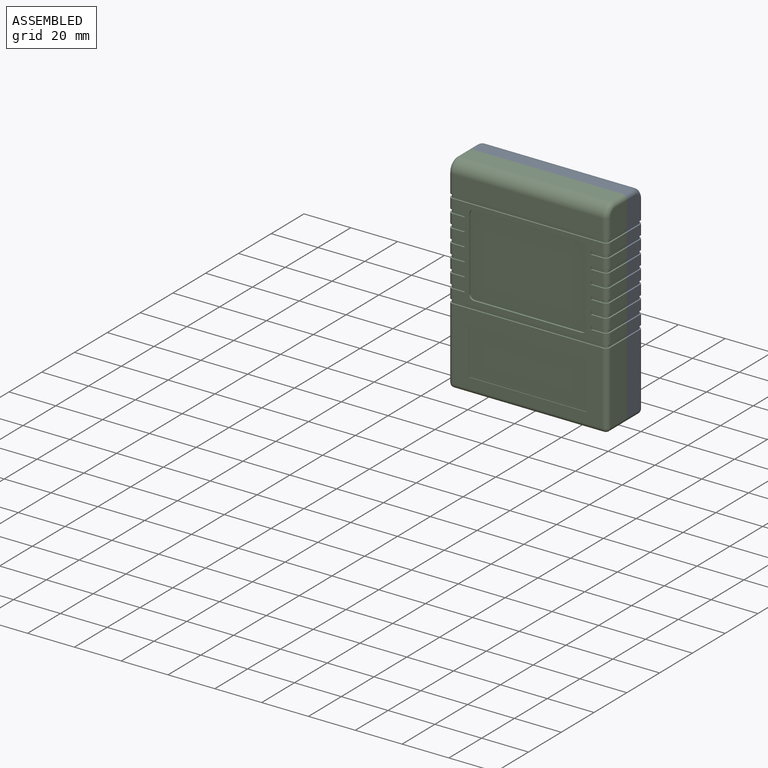
[diagram: assembled view]
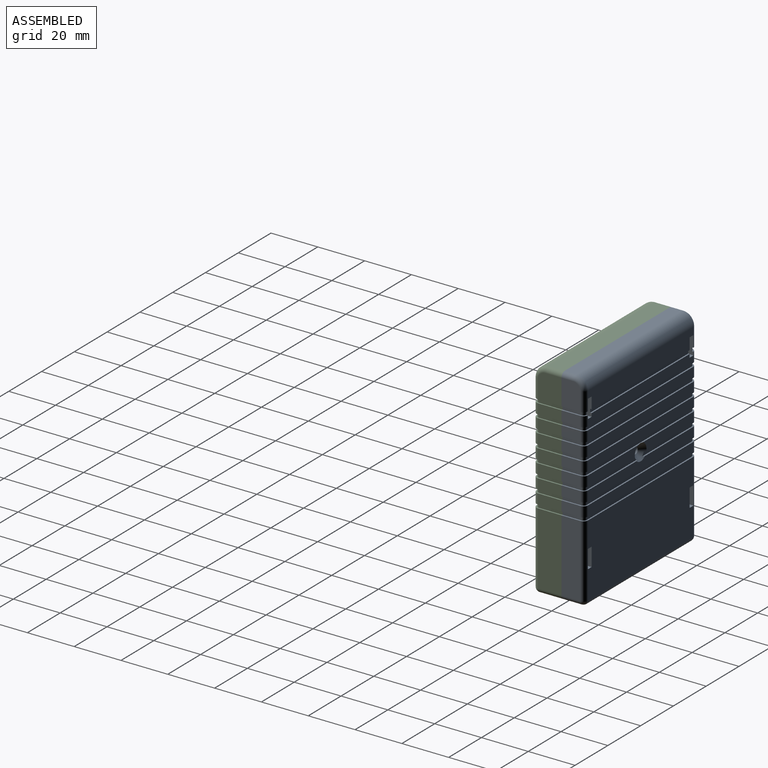
[diagram: assembled view, second angle]
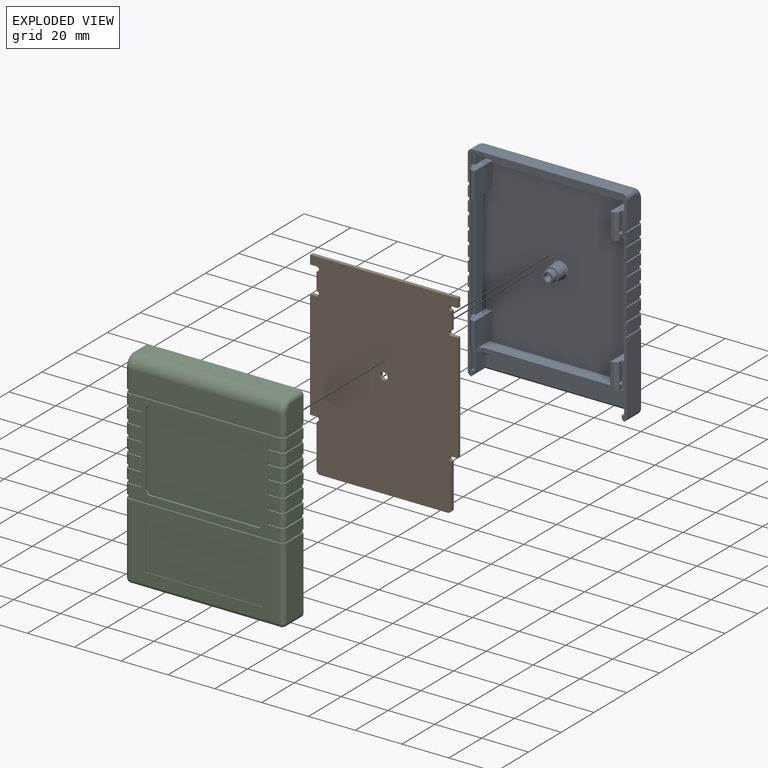
[diagram: exploded view]
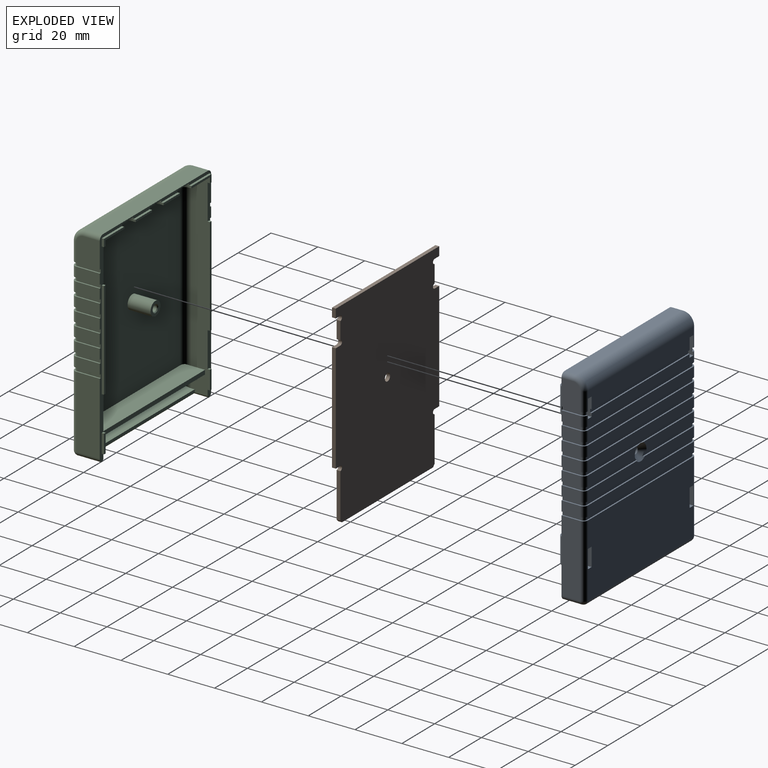
[diagram: exploded view, second angle]
FCSTD DOCUMENT  (FreeCAD 1.0R39319 (Git))
Label: C64MegaCartNormalCase
License: All rights reserved
LicenseURL: https://en.wikipedia.org/wiki/All_rights_reserved
objects: Sketcher::SketchObject×29, PartDesign::Pocket×15, PartDesign::Pad×10, PartDesign::Fillet×4, PartDesign::Mirrored×3, PartDesign::LinearPattern×3, PartDesign::Body×3, App::Link×3, PartDesign::SubtractivePipe×2, PartDesign::Plane×2, PartDesign::Draft×2, PartDesign::Groove×2, PartDesign::Chamfer×1, App::FeaturePython×1, Assembly::JointGroup×1, Assembly::AssemblyObject×1, PartDesign::AdditiveCone×1, PartDesign::SubtractiveCylinder×1, App::DocumentObjectGroup×1
note: 189 computed .brp shape members not serialized (recipe doc carries the construction recipe); baked Part::Feature solids carry a one-line shape summary decoded from their .brp

FEATURE [Sketcher::SketchObject] Sketch
  ArcFitTolerance = 1e-06
  AttachmentSupport = -> [YZ_Plane]
  FullyConstrained = true
  MakeInternals = false
  MapMode = 5
  Placement = pos=(0,0,0) rot=(0.57735,0.57735,0.57735;2.0944rad)
  sketch-geometry (4):
    g0: LineSegment StartX=0 StartY=0 StartZ=0 EndX=0 EndY=-88 EndZ=0
    g1: LineSegment StartX=0 StartY=-88 StartZ=0 EndX=10 EndY=-88 EndZ=0
    g2: LineSegment StartX=10 StartY=-88 StartZ=0 EndX=10 EndY=0 EndZ=0
    g3: LineSegment StartX=10 StartY=0 StartZ=0 EndX=0 EndY=0 EndZ=0
  constraints (11):
    c: Coincident(g-1,g0)
    c: PointOnObject(g0,g-2)
    c: Coincident(g0,g1)
    c: Horizontal(g1)
    c: Coincident(g1,g2)
    c: PointOnObject(g2,g-1)
    c: Vertical(g2)
    c: Coincident(g2,g3)
    c: Coincident(g3,g0)
    c: DistanceX(g3,g3) = 10
    c: DistanceY(g2,g2) = 88
FEATURE [PartDesign::Pad] Pad
  Direction = (1,0,0)
  Length = 68
  Length2 = 10
  Midplane = true
  Placement = pos=(0,0,0) rot=(1,1,1;2.0944rad)
  Profile = -> Sketch
  ReferenceAxis = -> Sketch [N_Axis]
  Refine = true
  Suppressed = false
  Type = 0
FEATURE [PartDesign::Fillet] Fillet
  Base = -> Pad [Edge8]
  BaseFeature = -> Pad
  Placement = pos=(0,0,0) rot=(1,1,1;2.0944rad)
  Radius = 5
  Refine = true
  SupportTransform = false
  Suppressed = false
  UseAllEdges = false
FEATURE [PartDesign::Fillet] Fillet001
  Base = -> Fillet [Edge4,Edge3,Edge12,Edge6,Edge1]
  BaseFeature = -> Fillet
  Placement = pos=(0,0,0) rot=(1,1,1;2.0944rad)
  Radius = 2
  Refine = true
  SupportTransform = false
  Suppressed = false
  UseAllEdges = false
FEATURE [Sketcher::SketchObject] Sketch001
  ArcFitTolerance = 1e-06
  AttachmentSupport = -> [YZ_Plane]
  FullyConstrained = false
  MakeInternals = false
  MapMode = 5
  Placement = pos=(0,0,0) rot=(0.57735,0.57735,0.57735;2.0944rad)
  sketch-geometry (5):
    g0: LineSegment StartX=0 StartY=-2.2 StartZ=0 EndX=5.01607 EndY=-2.2 EndZ=0
    g1: ArcOfCircle CenterX=5.01607 CenterY=-5 CenterZ=0 NormalX=0 NormalY=0 NormalZ=1 AngleXU=0 Radius=2.8 StartAngle=-1.8e-15 EndAngle=1.5708
    g2: LineSegment StartX=7.81607 StartY=-5 StartZ=0 EndX=7.81607 EndY=-90.2 EndZ=0
    g3: LineSegment StartX=7.81607 StartY=-90.2 StartZ=0 EndX=0 EndY=-90.2 EndZ=0
    g4: LineSegment StartX=0 StartY=-90.2 StartZ=0 EndX=0 EndY=-2.2 EndZ=0
  constraints (13):
    c: PointOnObject(g0,g-2)
    c: Horizontal(g0)
    c: Tangent(g0,g1) = 1.5708
    c: Angle(g1) = 1.5708
    c: Tangent(g1,g2) = 1.5708
    c: Coincident(g2,g3)
    c: PointOnObject(g3,g-2)
    c: Coincident(g3,g4)
    c: Coincident(g4,g0)
    c: Horizontal(g3)
    c: Radius(g1) = 2.8
    c: DistanceY(g0,g-1) = 2.2
    c: DistanceY(g4,g4) = 88
FEATURE [PartDesign::Pocket] Pocket
  BaseFeature = -> Fillet001
  Direction = (-1,0,0)
  Length = 63.6
  Length2 = 5
  Midplane = true
  Placement = pos=(0,0,0) rot=(1,1,1;2.0944rad)
  Profile = -> Sketch001
  ReferenceAxis = -> Sketch001 [N_Axis]
  Refine = true
  Suppressed = false
  Type = 0
FEATURE [Sketcher::SketchObject] Sketch002
  ArcFitTolerance = 1e-06
  AttachmentSupport = -> [XZ_Plane]
  ExternalGeometry = -> [Pocket]
  FullyConstrained = true
  MakeInternals = false
  MapMode = 5
  Placement = pos=(0,0,0) rot=(1,0,0;1.5708rad)
  sketch-geometry (3):
    g0: LineSegment StartX=31.8 StartY=-87 StartZ=0 EndX=32.8 EndY=-88 EndZ=0
    g1: LineSegment StartX=32.8 StartY=-88 StartZ=0 EndX=31.8 EndY=-88 EndZ=0
    g2: LineSegment StartX=31.8 StartY=-88 StartZ=0 EndX=31.8 EndY=-87 EndZ=0
  constraints (8):
    c: Coincident(g0,g1)
    c: Horizontal(g1)
    c: Coincident(g1,g2)
    c: Coincident(g2,g0)
    c: Vertical(g2)
    c: Angle(g2,g0) = 0.785398
    c: Coincident(g1,g-3)
    c: DistanceY(g2,g2) = 1
FEATURE [PartDesign::SubtractivePipe] SubtractivePipe
  AuxilleryCurvelinear = true
  AuxillerySpineTangent = false
  BaseFeature = -> Pocket
  Binormal = (0,0,0)
  Mode = 0
  Placement = pos=(0,0,0) rot=(1,1,1;2.0944rad)
  Profile = -> Sketch002
  Refine = true
  Spine = -> Pocket [Edge37,Edge38,Edge39]
  SpineTangent = false
  Suppressed = false
  Transformation = 0
  Transition = 1
FEATURE [Sketcher::SketchObject] Sketch003
  ArcFitTolerance = 1e-06
  AttachmentOffset = pos=(0,0,-78.4) rot=(0,0,1;0rad)
  AttachmentSupport = -> [XY_Plane]
  FullyConstrained = true
  MakeInternals = false
  MapMode = 5
  Placement = pos=(0,0,-78.4) rot=(0,0,1;0rad)
  sketch-geometry (8):
    g0: LineSegment StartX=-32 StartY=8 StartZ=0 EndX=32 EndY=8 EndZ=0
    g1: LineSegment StartX=32 StartY=8 StartZ=0 EndX=32 EndY=0 EndZ=0
    g2: LineSegment StartX=32 StartY=0 StartZ=0 EndX=29 EndY=0 EndZ=0
    g3: LineSegment StartX=29 StartY=0 StartZ=0 EndX=29 EndY=2.2 EndZ=0
    g4: LineSegment StartX=29 StartY=2.2 StartZ=0 EndX=-29 EndY=2.2 EndZ=0
    g5: LineSegment StartX=-29 StartY=2.2 StartZ=0 EndX=-29 EndY=0 EndZ=0
    g6: LineSegment StartX=-29 StartY=0 StartZ=0 EndX=-32 EndY=0 EndZ=0
    g7: LineSegment StartX=-32 StartY=0 StartZ=0 EndX=-32 EndY=8 EndZ=0
  constraints (23):
    c: Coincident(g0,g1)
    c: Vertical(g1)
    c: Coincident(g1,g2)
    c: Horizontal(g2)
    c: Coincident(g2,g3)
    c: Vertical(g3)
    c: Coincident(g3,g4)
    c: Coincident(g4,g5)
    c: Vertical(g5)
    c: Coincident(g5,g6)
    c: Coincident(g6,g7)
    c: Coincident(g7,g0)
    c: Horizontal(g6)
    c: Vertical(g7)
    c: Equal(g6,g2)
    c: Equal(g3,g5)
    c: Symmetric(g4,g3,g-2)
    c: Horizontal(g0)
    c: PointOnObject(g6,g-1)
    c: DistanceX(g4,g4) = 58
    c: DistanceX(g6,g6) = 3
    c: DistanceY(g1,g1) = 8
    c: DistanceY(g5,g5) = 2.2
FEATURE [PartDesign::Pad] Pad001
  BaseFeature = -> SubtractivePipe
  Direction = (0,0,1)
  Length = 1.8
  Length2 = 10
  Placement = pos=(0,0,0) rot=(1,1,1;2.0944rad)
  Profile = -> Sketch003
  ReferenceAxis = -> Sketch003 [N_Axis]
  Refine = true
  Suppressed = false
  Type = 0
FEATURE [Sketcher::SketchObject] Sketch004
  ArcFitTolerance = 1e-06
  AttachmentSupport = -> [XZ_Plane]
  FullyConstrained = true
  MakeInternals = false
  MapMode = 5
  Placement = pos=(0,0,0) rot=(1,0,0;1.5708rad)
  sketch-geometry (4):
    g0: LineSegment StartX=-32.8 StartY=-1.2 StartZ=0 EndX=-32.8 EndY=-85.531 EndZ=0
    g1: LineSegment StartX=-32.8 StartY=-85.531 StartZ=0 EndX=32.8 EndY=-85.531 EndZ=0
    g2: LineSegment StartX=32.8 StartY=-85.531 StartZ=0 EndX=32.8 EndY=-1.2 EndZ=0
    g3: LineSegment StartX=32.8 StartY=-1.2 StartZ=0 EndX=-32.8 EndY=-1.2 EndZ=0
  constraints (11):
    c: Coincident(g0,g1)
    c: Coincident(g1,g2)
    c: Coincident(g2,g3)
    c: Coincident(g3,g0)
    c: Vertical(g0)
    c: Vertical(g2)
    c: Horizontal(g1)
    c: Symmetric(g0,g2,g-2)
    c: DistanceX(g3,g3) = 65.6
    c: DistanceY(g2,g-1) = 1.2
    c: DistanceY(g0,g0) = 84.331
FEATURE [PartDesign::Pocket] Pocket001
  BaseFeature = -> Pad001
  Direction = (0,1,-2e-16)
  Length = 1.5
  Length2 = 5
  Placement = pos=(0,0,0) rot=(1,1,1;2.0944rad)
  Profile = -> Sketch004
  ReferenceAxis = -> Sketch004 [N_Axis]
  Refine = true
  Suppressed = false
  Type = 0
FEATURE [Sketcher::SketchObject] Sketch005
  ArcFitTolerance = 1e-06
  AttachmentSupport = -> [Pocket]
  FullyConstrained = true
  MakeInternals = false
  MapMode = 5
  Placement = pos=(1.7e-15,7.81607,-7e-16) rot=(0.57735,0.57735,-0.57735;2.0944rad)
  sketch-geometry (1):
    g0: Circle CenterX=41 CenterY=0 CenterZ=0 NormalX=0 NormalY=0 NormalZ=1 AngleXU=0 Radius=3.075
  constraints (3):
    c: PointOnObject(g0,g-1)
    c: DistanceX(g-1,g0) = 41
    c: Diameter(g0) = 6.15
FEATURE [PartDesign::Pad] Pad002
  BaseFeature = -> Pocket001
  Direction = (0,-1,0)
  Length = 5.2
  Length2 = 10
  Placement = pos=(0,0,0) rot=(1,1,1;2.0944rad)
  Profile = -> Sketch005
  ReferenceAxis = -> Sketch005 [N_Axis]
  Refine = true
  Suppressed = false
  Type = 0
FEATURE [Sketcher::SketchObject] Sketch006
  ArcFitTolerance = 1e-06
  AttachmentSupport = -> [XZ_Plane]
  ExternalGeometry = -> [Pad002]
  FullyConstrained = true
  MakeInternals = false
  MapMode = 5
  Placement = pos=(0,0,0) rot=(1,0,0;1.5708rad)
  sketch-geometry (1):
    g0: Circle CenterX=0 CenterY=-41 CenterZ=0 NormalX=0 NormalY=0 NormalZ=1 AngleXU=0 Radius=0.5
  constraints (2):
    c: Diameter(g0) = 1
    c: Coincident(g0,g-3)
FEATURE [PartDesign::Pocket] Pocket002
  BaseFeature = -> Pad002
  Direction = (0,1,-2e-16)
  Length = 5
  Length2 = 5
  Placement = pos=(0,0,0) rot=(1,1,1;2.0944rad)
  Profile = -> Sketch006
  ReferenceAxis = -> Sketch006 [N_Axis]
  Refine = true
  Suppressed = false
  Type = 1
FEATURE [PartDesign::Chamfer] Chamfer
  Angle = 45
  Base = -> Pocket002 [Edge65]
  BaseFeature = -> Pocket002
  ChamferType = 0
  FlipDirection = false
  Placement = pos=(0,0,0) rot=(1,1,1;2.0944rad)
  Refine = true
  Size = 0.5
  Size2 = 1
  SupportTransform = false
  Suppressed = false
  UseAllEdges = false
FEATURE [PartDesign::Plane] DatumPlane
  AttachmentOffset = pos=(0,0,-12) rot=(0,0,1;0rad)
  AttachmentSupport = -> [XY_Plane]
  Length = 79.6619
  MapMode = 5
  Placement = pos=(0,0,-12) rot=(0,0,1;0rad)
  ResizeMode = 0
  Width = 61.6619
FEATURE [Sketcher::SketchObject] Sketch007
  ArcFitTolerance = 1e-06
  AttachmentSupport = -> [DatumPlane]
  FullyConstrained = true
  MakeInternals = false
  MapMode = 5
  Placement = pos=(0,0,-12) rot=(0,0,1;0rad)
  sketch-geometry (7):
    g0: LineSegment StartX=29 StartY=8 StartZ=0 EndX=29 EndY=-3 EndZ=0
    g1: LineSegment StartX=29 StartY=-3 StartZ=0 EndX=30.5 EndY=-3 EndZ=0
    g2: LineSegment StartX=30.5 StartY=-3 StartZ=0 EndX=31.8 EndY=-1.7 EndZ=0
    g3: LineSegment StartX=31.8 StartY=-1.7 StartZ=0 EndX=31.8 EndY=0 EndZ=0
    g4: LineSegment StartX=31.8 StartY=0 StartZ=0 EndX=33 EndY=0 EndZ=0
    g5: LineSegment StartX=33 StartY=0 StartZ=0 EndX=33 EndY=8 EndZ=0
    g6: LineSegment StartX=33 StartY=8 StartZ=0 EndX=29 EndY=8 EndZ=0
  constraints (21):
    c: Vertical(g0)
    c: Coincident(g0,g1)
    c: Horizontal(g1)
    c: Coincident(g1,g2)
    c: Coincident(g2,g3)
    c: PointOnObject(g3,g-1)
    c: Vertical(g3)
    c: Coincident(g3,g4)
    c: PointOnObject(g4,g-1)
    c: Coincident(g4,g5)
    c: Vertical(g5)
    c: Coincident(g5,g6)
    c: Coincident(g6,g0)
    c: Horizontal(g6)
    c: DistanceX(g1,g1) = 1.5
    c: DistanceY(g-1,g0) = 8
    c: Angle(g2,g1) = 2.35619
    c: DistanceX(g-1,g0) = 29
    c: DistanceX(g0,g2) = 2.8
    c: DistanceY(g3,g3) = 1.7
    c: DistanceX(g4,g4) = 1.2
FEATURE [PartDesign::Pad] Pad003
  BaseFeature = -> Chamfer
  Direction = (0,0,1)
  Length = 11
  Length2 = 10
  Midplane = true
  Placement = pos=(0,0,0) rot=(1,1,1;2.0944rad)
  Profile = -> Sketch007
  ReferenceAxis = -> Sketch007 [N_Axis]
  Refine = true
  Suppressed = false
  Type = 0
FEATURE [Sketcher::SketchObject] Sketch008
  ArcFitTolerance = 1e-06
  AttachmentSupport = -> [DatumPlane]
  ExternalGeometry = -> [Sketch007]
  FullyConstrained = false
  MakeInternals = false
  MapMode = 5
  Placement = pos=(0,0,-12) rot=(0,0,1;0rad)
  sketch-geometry (5):
    g0: LineSegment StartX=29.881 StartY=11 StartZ=0 EndX=30.3 EndY=-1 EndZ=0
    g1: LineSegment StartX=30.3 StartY=-1 StartZ=0 EndX=31.0416 EndY=-1 EndZ=0
    g2: LineSegment StartX=31.0416 StartY=-1 StartZ=0 EndX=31.8 EndY=-1.4 EndZ=0
    g3: LineSegment StartX=31.8 StartY=-1.4 StartZ=0 EndX=32.233 EndY=11 EndZ=0
    g4: LineSegment StartX=32.233 StartY=11 StartZ=0 EndX=29.881 EndY=11 EndZ=0
  constraints (14):
    c: Coincident(g0,g1)
    c: Horizontal(g1)
    c: Coincident(g1,g2)
    c: Coincident(g2,g3)
    c: Coincident(g3,g4)
    c: Coincident(g4,g0)
    c: Horizontal(g4)
    c: PointOnObject(g2,g-3)
    c: DistanceY(g-3,g2) = 0.3
    c: DistanceX(g0,g2) = 1.5
    c: DistanceY(g-3,g1) = 0.7
    c: Angle(g0,g-1) = 1.53589
    c: Angle(g3,g-1) = 1.6057
    c: DistanceY(g-1,g0) = 11
FEATURE [PartDesign::Pocket] Pocket003
  BaseFeature = -> Pad003
  Direction = (0,0,-1)
  Length = 7.1
  Length2 = 5
  Midplane = true
  Placement = pos=(0,0,0) rot=(1,1,1;2.0944rad)
  Profile = -> Sketch008
  ReferenceAxis = -> Sketch008 [N_Axis]
  Refine = true
  Suppressed = false
  Type = 0
FEATURE [PartDesign::Draft] Draft
  Angle = 2
  Base = -> Pocket003 [Face31,Face29]
  BaseFeature = -> Pocket003
  NeutralPlane = -> Pocket003 [Face55]
  Placement = pos=(0,0,0) rot=(1,1,1;2.0944rad)
  Refine = true
  Reversed = true
  SupportTransform = false
  Suppressed = false
FEATURE [PartDesign::Plane] DatumPlane001
  AttachmentOffset = pos=(0,0,-70) rot=(0,0,1;0rad)
  AttachmentSupport = -> [XY_Plane]
  Length = 79.6619
  MapMode = 5
  Placement = pos=(0,0,-70) rot=(0,0,1;0rad)
  ResizeMode = 0
  Width = 61.6619
FEATURE [Sketcher::SketchObject] Sketch009
  ArcFitTolerance = 1e-06
  AttachmentSupport = -> [DatumPlane001]
  FullyConstrained = true
  MakeInternals = false
  MapMode = 5
  Placement = pos=(0,0,-70) rot=(0,0,1;0rad)
  sketch-geometry (7):
    g0: LineSegment StartX=29 StartY=8 StartZ=0 EndX=29 EndY=-3 EndZ=0
    g1: LineSegment StartX=29 StartY=-3 StartZ=0 EndX=30.5 EndY=-3 EndZ=0
    g2: LineSegment StartX=30.5 StartY=-3 StartZ=0 EndX=31.8 EndY=-1.7 EndZ=0
    g3: LineSegment StartX=31.8 StartY=-1.7 StartZ=0 EndX=31.8 EndY=0 EndZ=0
    g4: LineSegment StartX=31.8 StartY=0 StartZ=0 EndX=33 EndY=0 EndZ=0
    g5: LineSegment StartX=33 StartY=0 StartZ=0 EndX=33 EndY=8 EndZ=0
    g6: LineSegment StartX=33 StartY=8 StartZ=0 EndX=29 EndY=8 EndZ=0
  constraints (21):
    c: Vertical(g0)
    c: Coincident(g0,g1)
    c: Horizontal(g1)
    c: Coincident(g1,g2)
    c: Coincident(g2,g3)
    c: PointOnObject(g3,g-1)
    c: Vertical(g3)
    c: Coincident(g3,g4)
    c: PointOnObject(g4,g-1)
    c: Coincident(g4,g5)
    c: Vertical(g5)
    c: Coincident(g5,g6)
    c: Horizontal(g6)
    c: DistanceX(g1,g1) = 1.5
    c: Angle(g2,g1) = 2.35619
    c: DistanceX(g0,g2) = 2.8
    c: Coincident(g6,g0)
    c: DistanceY(g-1,g0) = 8
    c: DistanceX(g4,g4) = 1.2
    c: DistanceX(g-1,g0) = 29
    c: DistanceY(g3,g3) = 1.7
FEATURE [PartDesign::Pad] Pad004
  BaseFeature = -> Draft
  Direction = (0,0,1)
  Length = 11
  Length2 = 10
  Midplane = true
  Placement = pos=(0,0,0) rot=(1,1,1;2.0944rad)
  Profile = -> Sketch009
  ReferenceAxis = -> Sketch009 [N_Axis]
  Refine = true
  Suppressed = false
  Type = 0
FEATURE [Sketcher::SketchObject] Sketch010
  ArcFitTolerance = 1e-06
  AttachmentSupport = -> [DatumPlane001]
  ExternalGeometry = -> [Sketch009]
  FullyConstrained = true
  MakeInternals = false
  MapMode = 5
  Placement = pos=(0,0,-70) rot=(0,0,1;0rad)
  sketch-geometry (5):
    g0: LineSegment StartX=29.881 StartY=11 StartZ=0 EndX=30.3 EndY=-1 EndZ=0
    g1: LineSegment StartX=30.3 StartY=-1 StartZ=0 EndX=31.05 EndY=-1 EndZ=0
    g2: LineSegment StartX=31.05 StartY=-1 StartZ=0 EndX=31.8 EndY=-1.4 EndZ=0
    g3: LineSegment StartX=31.8 StartY=-1.4 StartZ=0 EndX=32.233 EndY=11 EndZ=0
    g4: LineSegment StartX=32.233 StartY=11 StartZ=0 EndX=29.881 EndY=11 EndZ=0
  constraints (15):
    c: Coincident(g0,g1)
    c: Horizontal(g1)
    c: Coincident(g1,g2)
    c: Coincident(g2,g3)
    c: Coincident(g3,g4)
    c: Coincident(g4,g0)
    c: Horizontal(g4)
    c: PointOnObject(g2,g-3)
    c: DistanceY(g-3,g2) = 0.3
    c: DistanceX(g1,g1) = 0.75
    c: DistanceY(g2,g1) = 0.4
    c: DistanceX(g0,g2) = 1.5
    c: Angle(g0,g-1) = 1.53589
    c: Angle(g3,g-1) = 1.6057
    c: DistanceY(g-1,g0) = 11
FEATURE [PartDesign::Pocket] Pocket004
  BaseFeature = -> Pad004
  Direction = (0,0,-1)
  Length = 7.1
  Length2 = 5
  Midplane = true
  Placement = pos=(0,0,0) rot=(1,1,1;2.0944rad)
  Profile = -> Sketch010
  ReferenceAxis = -> Sketch010 [N_Axis]
  Refine = true
  Suppressed = false
  Type = 0
FEATURE [PartDesign::Draft] Draft001
  Angle = 2
  Base = -> Pocket004 [Face41,Face43]
  BaseFeature = -> Pocket004
  NeutralPlane = -> Pocket004 [Face70]
  Placement = pos=(0,0,0) rot=(1,1,1;2.0944rad)
  Refine = true
  Reversed = true
  SupportTransform = false
  Suppressed = false
FEATURE [PartDesign::Mirrored] Mirrored
  BaseFeature = -> Draft001
  MirrorPlane = -> YZ_Plane
  Originals = -> [Pad003,Pocket003,Draft,Pad004,Pocket004,Draft001]
  Placement = pos=(0,0,0) rot=(1,1,1;2.0944rad)
  Refine = true
  Suppressed = false
  TransformMode = 0
FEATURE [Sketcher::SketchObject] Sketch011
  ArcFitTolerance = 1e-06
  AttachmentOffset = pos=(0,0,-55.1) rot=(0,0,1;0rad)
  AttachmentSupport = -> [XY_Plane]
  ExternalGeometry = -> [Fillet001]
  FullyConstrained = true
  MakeInternals = false
  MapMode = 5
  Placement = pos=(0,0,-55.1) rot=(0,0,1;0rad)
  sketch-geometry (12):
    g0: LineSegment StartX=-33.4 StartY=0 StartZ=0 EndX=-33.4 EndY=8 EndZ=0
    g1: LineSegment StartX=-32 StartY=9.4 StartZ=0 EndX=32 EndY=9.4 EndZ=0
    g2: LineSegment StartX=33.4 StartY=8 StartZ=0 EndX=33.4 EndY=0 EndZ=0
    g3: LineSegment StartX=33.4 StartY=0 StartZ=0 EndX=38.4 EndY=0 EndZ=0
    g4: LineSegment StartX=38.4 StartY=0 StartZ=0 EndX=38.4 EndY=20 EndZ=0
    g5: LineSegment StartX=38.4 StartY=20 StartZ=0 EndX=-38.4 EndY=20 EndZ=0
    g6: LineSegment StartX=-38.4 StartY=20 StartZ=0 EndX=-38.4 EndY=0 EndZ=0
    g7: LineSegment StartX=-38.4 StartY=0 StartZ=0 EndX=-33.4 EndY=0 EndZ=0
    g8: ArcOfCircle CenterX=-32 CenterY=8 CenterZ=0 NormalX=0 NormalY=0 NormalZ=1 AngleXU=0 Radius=1.4 StartAngle=1.5708 EndAngle=3.14159
    g9: GeomPoint [constr] X=-33.4 Y=9.4 Z=0
    g10: ArcOfCircle CenterX=32 CenterY=8 CenterZ=0 NormalX=0 NormalY=0 NormalZ=1 AngleXU=0 Radius=1.4 StartAngle=0 EndAngle=1.5708
    g11: GeomPoint [constr] X=33.4 Y=9.4 Z=0
  constraints (30):
    c: PointOnObject(g0,g-1)
    c: Vertical(g0)
    c: PointOnObject(g2,g-1)
    c: Vertical(g2)
    c: Coincident(g2,g3)
    c: PointOnObject(g3,g-1)
    c: Coincident(g3,g4)
    c: Vertical(g4)
    c: Coincident(g4,g5)
    c: Coincident(g5,g6)
    c: PointOnObject(g6,g-1)
    c: Vertical(g6)
    c: Coincident(g6,g7)
    c: Coincident(g7,g0)
    c: Symmetric(g9,g11,g-2)
    c: Horizontal(g5)
    c: PointOnObject(g9,g0)
    c: PointOnObject(g9,g1)
    c: Tangent(g0,g8) = 1.5708
    c: Tangent(g1,g8) = 1.5708
    c: PointOnObject(g11,g1)
    c: PointOnObject(g11,g2)
    c: Tangent(g1,g10) = 1.5708
    c: Tangent(g2,g10) = 1.5708
    c: Equal(g8,g10)
    c: Coincident(g10,g-3)
    c: DistanceY(g1,g-3) = 0.6
    c: DistanceX(g3,g3) = 5
    c: DistanceY(g4,g4) = 20
    c: Equal(g7,g3)
FEATURE [PartDesign::Pocket] Pocket005
  BaseFeature = -> Mirrored
  Direction = (0,0,-1)
  Length = 1.5
  Length2 = 5
  Placement = pos=(0,0,0) rot=(1,1,1;2.0944rad)
  Profile = -> Sketch011
  ReferenceAxis = -> Sketch011 [N_Axis]
  Refine = true
  Reversed = true
  Suppressed = false
  Type = 0
FEATURE [PartDesign::LinearPattern] LinearPattern
  BaseFeature = -> Pocket005
  Direction = -> Z_Axis
  Length = 40.6
  Mode = 0
  Occurrences = 8
  Offset = 5.8
  Originals = -> [Pocket005]
  Placement = pos=(0,0,0) rot=(1,1,1;2.0944rad)
  Refine = true
  Suppressed = false
  TransformMode = 0
FEATURE [Sketcher::SketchObject] Sketch013
  ArcFitTolerance = 1e-06
  AttachmentSupport = -> [YZ_Plane002]
  FullyConstrained = true
  MakeInternals = false
  MapMode = 5
  Placement = pos=(0,0,0) rot=(0.57735,0.57735,0.57735;2.0944rad)
  sketch-geometry (6):
    g0: LineSegment StartX=0 StartY=0 StartZ=0 EndX=0 EndY=-88 EndZ=0
    g1: LineSegment StartX=0 StartY=-88 StartZ=0 EndX=12 EndY=-88 EndZ=0
    g2: LineSegment StartX=12 StartY=-88 StartZ=0 EndX=12 EndY=-5 EndZ=0
    g3: LineSegment StartX=7 StartY=0 StartZ=0 EndX=0 EndY=0 EndZ=0
    g4: ArcOfCircle CenterX=7 CenterY=-5 CenterZ=0 NormalX=0 NormalY=0 NormalZ=1 AngleXU=0 Radius=5 StartAngle=0 EndAngle=1.5708
    g5: GeomPoint [constr] X=12 Y=0 Z=0
  constraints (15):
    c: Coincident(g-1,g0)
    c: PointOnObject(g0,g-2)
    c: Coincident(g0,g1)
    c: Horizontal(g1)
    c: Coincident(g1,g2)
    c: Vertical(g2)
    c: Coincident(g3,g0)
    c: PointOnObject(g5,g-1)
    c: PointOnObject(g5,g2)
    c: PointOnObject(g5,g3)
    c: Tangent(g2,g4) = -1.5708
    c: Tangent(g3,g4) = -1.5708
    c: Radius(g4) = 5
    c: DistanceX(g0,g2) = 12
    c: DistanceY(g0,g0) = 88
FEATURE [PartDesign::Pad] Pad005
  Direction = (1,0,0)
  Length = 68
  Length2 = 10
  Midplane = true
  Placement = pos=(0,0,0) rot=(1,1,1;2.0944rad)
  Profile = -> Sketch013
  ReferenceAxis = -> Sketch013 [N_Axis]
  Refine = true
  Suppressed = false
  Type = 0
FEATURE [PartDesign::Fillet] Fillet002
  Base = -> Pad005 [Edge6,Edge9,Edge5,Edge10,Edge7]
  BaseFeature = -> Pad005
  Placement = pos=(0,0,0) rot=(1,1,1;2.0944rad)
  Radius = 2
  Refine = true
  SupportTransform = false
  Suppressed = false
  UseAllEdges = false
FEATURE [Sketcher::SketchObject] Sketch014
  ArcFitTolerance = 1e-06
  AttachmentSupport = -> [XZ_Plane002]
  FullyConstrained = true
  MakeInternals = false
  MapMode = 5
  Placement = pos=(0,0,0) rot=(1,0,0;1.5708rad)
  sketch-geometry (4):
    g0: LineSegment StartX=-31.8 StartY=-2.2 StartZ=0 EndX=-31.8 EndY=-85.8 EndZ=0
    g1: LineSegment StartX=-31.8 StartY=-85.8 StartZ=0 EndX=31.8 EndY=-85.8 EndZ=0
    g2: LineSegment StartX=31.8 StartY=-85.8 StartZ=0 EndX=31.8 EndY=-2.2 EndZ=0
    g3: LineSegment StartX=31.8 StartY=-2.2 StartZ=0 EndX=-31.8 EndY=-2.2 EndZ=0
  constraints (11):
    c: Coincident(g0,g1)
    c: Coincident(g1,g2)
    c: Coincident(g2,g3)
    c: Coincident(g3,g0)
    c: Vertical(g0)
    c: Vertical(g2)
    c: Horizontal(g1)
    c: Symmetric(g0,g2,g-2)
    c: DistanceY(g2,g-1) = 2.2
    c: DistanceX(g3,g3) = 63.6
    c: DistanceY(g0,g-1) = 85.8
FEATURE [PartDesign::Pocket] Pocket006
  BaseFeature = -> Fillet002
  Direction = (0,1,-2e-16)
  Length = 9.8
  Length2 = 5
  Placement = pos=(0,0,0) rot=(1,1,1;2.0944rad)
  Profile = -> Sketch014
  ReferenceAxis = -> Sketch014 [N_Axis]
  Refine = true
  Suppressed = false
  Type = 0
FEATURE [Sketcher::SketchObject] Sketch015
  ArcFitTolerance = 1e-06
  AttachmentSupport = -> [XZ_Plane002]
  ExternalGeometry = -> [Pocket006]
  FullyConstrained = true
  MakeInternals = false
  MapMode = 5
  Placement = pos=(0,0,0) rot=(1,0,0;1.5708rad)
  sketch-geometry (4):
    g0: LineSegment StartX=-31.8 StartY=-85.8 StartZ=0 EndX=-31.8 EndY=-90.8 EndZ=0
    g1: LineSegment StartX=-31.8 StartY=-90.8 StartZ=0 EndX=31.8 EndY=-90.8 EndZ=0
    g2: LineSegment StartX=31.8 StartY=-90.8 StartZ=0 EndX=31.8 EndY=-85.8 EndZ=0
    g3: LineSegment StartX=31.8 StartY=-85.8 StartZ=0 EndX=-31.8 EndY=-85.8 EndZ=0
  constraints (10):
    c: Coincident(g0,g1)
    c: Coincident(g1,g2)
    c: Coincident(g2,g3)
    c: Coincident(g3,g0)
    c: Vertical(g0)
    c: Vertical(g2)
    c: Horizontal(g1)
    c: Coincident(g0,g-3)
    c: Coincident(g2,g-3)
    c: DistanceY(g2,g2) = 5
FEATURE [PartDesign::Pocket] Pocket007
  BaseFeature = -> Pocket006
  Direction = (0,1,-2e-16)
  Length = 5.5
  Length2 = 5
  Placement = pos=(0,0,0) rot=(1,1,1;2.0944rad)
  Profile = -> Sketch015
  ReferenceAxis = -> Sketch015 [N_Axis]
  Refine = true
  Suppressed = false
  Type = 0
FEATURE [Sketcher::SketchObject] Sketch016
  ArcFitTolerance = 1e-06
  AttachmentSupport = -> [XZ_Plane002]
  ExternalGeometry = -> [Pocket007]
  FullyConstrained = true
  MakeInternals = false
  MapMode = 5
  Placement = pos=(0,0,0) rot=(1,0,0;1.5708rad)
  sketch-geometry (3):
    g0: LineSegment StartX=31.8 StartY=-87 StartZ=0 EndX=31.8 EndY=-88 EndZ=0
    g1: LineSegment StartX=31.8 StartY=-88 StartZ=0 EndX=32.8 EndY=-88 EndZ=0
    g2: LineSegment StartX=32.8 StartY=-88 StartZ=0 EndX=31.8 EndY=-87 EndZ=0
  constraints (8):
    c: Coincident(g0,g1)
    c: Horizontal(g1)
    c: Coincident(g1,g2)
    c: Coincident(g2,g0)
    c: Equal(g0,g1)
    c: Coincident(g0,g-3)
    c: PointOnObject(g0,g-3)
    c: DistanceY(g0,g-3) = 1.2
FEATURE [PartDesign::SubtractivePipe] SubtractivePipe001
  AuxilleryCurvelinear = true
  AuxillerySpineTangent = false
  BaseFeature = -> Pocket007
  Binormal = (0,0,0)
  Mode = 0
  Placement = pos=(0,0,0) rot=(1,1,1;2.0944rad)
  Profile = -> Sketch016
  Refine = true
  Spine = -> Pocket007 [Edge23,Edge24,Edge25]
  SpineTangent = false
  Suppressed = false
  Transformation = 0
  Transition = 1
FEATURE [PartDesign::Fillet] Fillet003
  Base = -> SubtractivePipe001 [Face19]
  BaseFeature = -> SubtractivePipe001
  Placement = pos=(0,0,0) rot=(1,1,1;2.0944rad)
  Radius = 2.8
  Refine = true
  SupportTransform = false
  Suppressed = false
  UseAllEdges = false
FEATURE [Sketcher::SketchObject] Sketch017
  ArcFitTolerance = 1e-06
  AttachmentSupport = -> [XZ_Plane002]
  ExternalGeometry = -> [Pocket007]
  FullyConstrained = true
  MakeInternals = false
  MapMode = 5
  Placement = pos=(0,0,0) rot=(1,0,0;1.5708rad)
  sketch-geometry (16):
    g0: LineSegment StartX=0 StartY=-1.3 StartZ=0 EndX=0 EndY=-2.2 EndZ=0
    g1: LineSegment StartX=0 StartY=-2.2 StartZ=0 EndX=31.8 EndY=-2.2 EndZ=0
    g2: LineSegment StartX=32.8 StartY=-1.3 StartZ=0 EndX=0 EndY=-1.3 EndZ=0
    g3: LineSegment StartX=31.8 StartY=-2.2 StartZ=0 EndX=31.8 EndY=-4.5 EndZ=0
    g4: LineSegment StartX=31.8 StartY=-4.5 StartZ=0 EndX=32.8 EndY=-4.5 EndZ=0
    g5: LineSegment StartX=32.8 StartY=-4.5 StartZ=0 EndX=32.8 EndY=-1.3 EndZ=0
    g6: LineSegment StartX=31.8 StartY=-19.5 StartZ=0 EndX=31.8 EndY=-61.5 EndZ=0
    g7: LineSegment StartX=31.8 StartY=-61.5 StartZ=0 EndX=32.8 EndY=-61.5 EndZ=0
    g8: LineSegment StartX=32.8 StartY=-61.5 StartZ=0 EndX=32.8 EndY=-19.5 EndZ=0
    g9: LineSegment StartX=32.8 StartY=-19.5 StartZ=0 EndX=31.8 EndY=-19.5 EndZ=0
    g10: LineSegment StartX=31.8 StartY=-76.5 StartZ=0 EndX=31.8 EndY=-84.5 EndZ=0
    g11: LineSegment StartX=31.8 StartY=-84.5 StartZ=0 EndX=32.8 EndY=-84.5 EndZ=0
    g12: LineSegment StartX=32.8 StartY=-84.5 StartZ=0 EndX=32.8 EndY=-76.5 EndZ=0
    g13: LineSegment StartX=32.8 StartY=-76.5 StartZ=0 EndX=31.8 EndY=-76.5 EndZ=0
    g14: LineSegment [constr] StartX=32.8 StartY=-88 StartZ=0 EndX=32.8 EndY=-1.3 EndZ=0
    g15: LineSegment [constr] StartX=32.8 StartY=-1.3 StartZ=0 EndX=0 EndY=-1.3 EndZ=0
  constraints (47):
    c: Coincident(g0,g1)
    c: Coincident(g2,g0)
    c: PointOnObject(g0,g-2)
    c: Coincident(g3,g4)
    c: Coincident(g4,g5)
    c: Vertical(g5)
    c: Horizontal(g4)
    c: Coincident(g6,g7)
    c: Coincident(g7,g8)
    c: Coincident(g8,g9)
    c: Coincident(g9,g6)
    c: Vertical(g6)
    c: Vertical(g8)
    c: Horizontal(g7)
    c: Horizontal(g9)
    c: PointOnObject(g6,g-3)
    c: Coincident(g10,g11)
    c: Coincident(g11,g12)
    c: Coincident(g12,g13)
    c: Coincident(g13,g10)
    c: Vertical(g10)
    c: Vertical(g12)
    c: Horizontal(g11)
    c: Horizontal(g13)
    c: PointOnObject(g10,g-3)
    c: Vertical(g14)
    c: Coincident(g15,g14)
    c: PointOnObject(g15,g-2)
    c: Horizontal(g15)
    c: Coincident(g2,g5)
    c: Coincident(g3,g1)
    c: Coincident(g1,g-4)
    c: PointOnObject(g3,g-3)
    c: PointOnObject(g0,g-4)
    c: Vertical(g0)
    c: PointOnObject(g0,g15)
    c: Coincident(g2,g14)
    c: DistanceY(g0,g15) = 0.9
    c: Horizontal(g14,g-3)
    c: DistanceX(g-3,g14) = 1
    c: PointOnObject(g8,g14)
    c: DistanceY(g5,g5) = 3.2
    c: DistanceY(g8,g4) = 15
    c: DistanceY(g8,g8) = 42
    c: DistanceY(g12,g7) = 15
    c: DistanceY(g12,g12) = 8
    c: PointOnObject(g11,g14)
FEATURE [PartDesign::Pad] Pad006
  BaseFeature = -> Fillet003
  Direction = (0,-1,2e-16)
  Length = 1
  Length2 = 10
  Placement = pos=(0,0,0) rot=(1,1,1;2.0944rad)
  Profile = -> Sketch017
  ReferenceAxis = -> Sketch017 [N_Axis]
  Refine = true
  Suppressed = false
  Type = 0
FEATURE [PartDesign::Mirrored] Mirrored001
  BaseFeature = -> Pad006
  MirrorPlane = -> Sketch017 [V_Axis]
  Originals = -> [Pad006]
  Placement = pos=(0,0,0) rot=(1,1,1;2.0944rad)
  Refine = true
  Suppressed = false
  TransformMode = 0
FEATURE [Sketcher::SketchObject] Sketch018
  ArcFitTolerance = 1e-06
  AttachmentOffset = pos=(0,0,-78.4) rot=(0,0,1;0rad)
  AttachmentSupport = -> [XY_Plane002]
  FullyConstrained = true
  MakeInternals = false
  MapMode = 5
  Placement = pos=(0,0,-78.4) rot=(0,0,1;0rad)
  sketch-geometry (4):
    g0: LineSegment StartX=-30.95 StartY=10.5 StartZ=0 EndX=-30.95 EndY=0.5 EndZ=0
    g1: LineSegment StartX=-30.95 StartY=0.5 StartZ=0 EndX=30.95 EndY=0.5 EndZ=0
    g2: LineSegment StartX=30.95 StartY=0.5 StartZ=0 EndX=30.95 EndY=10.5 EndZ=0
    g3: LineSegment StartX=30.95 StartY=10.5 StartZ=0 EndX=-30.95 EndY=10.5 EndZ=0
  constraints (11):
    c: Coincident(g0,g1)
    c: Coincident(g1,g2)
    c: Coincident(g2,g3)
    c: Coincident(g3,g0)
    c: Vertical(g0)
    c: Vertical(g2)
    c: Horizontal(g3)
    c: Symmetric(g0,g1,g-2)
    c: DistanceX(g1,g1) = 61.9
    c: DistanceY(g-1,g1) = 0.5
    c: DistanceY(g2,g2) = 10
FEATURE [PartDesign::Pad] Pad007
  BaseFeature = -> Mirrored001
  Direction = (0,0,1)
  Length = 1.8
  Length2 = 10
  Placement = pos=(0,0,0) rot=(1,1,1;2.0944rad)
  Profile = -> Sketch018
  ReferenceAxis = -> Sketch018 [N_Axis]
  Refine = true
  Suppressed = false
  Type = 0
FEATURE [Sketcher::SketchObject] Sketch019
  ArcFitTolerance = 1e-06
  AttachmentSupport = -> [Pocket006]
  FullyConstrained = true
  MakeInternals = false
  MapMode = 5
  Placement = pos=(0,9.8,0) rot=(0.57735,0.57735,-0.57735;2.0944rad)
  sketch-geometry (1):
    g0: Circle CenterX=41 CenterY=0 CenterZ=0 NormalX=0 NormalY=0 NormalZ=1 AngleXU=0 Radius=3
  constraints (3):
    c: PointOnObject(g0,g-1)
    c: DistanceX(g-1,g0) = 41
    c: Diameter(g0) = 6
FEATURE [PartDesign::Pad] Pad008
  BaseFeature = -> Pad007
  Direction = (0,-1,0)
  Length = 9.8
  Length2 = 10
  Placement = pos=(0,0,0) rot=(1,1,1;2.0944rad)
  Profile = -> Sketch019
  ReferenceAxis = -> Sketch019 [N_Axis]
  Refine = true
  Suppressed = false
  Type = 0
FEATURE [Sketcher::SketchObject] Sketch020
  ArcFitTolerance = 1e-06
  AttachmentSupport = -> [YZ_Plane002]
  FullyConstrained = false
  MakeInternals = false
  MapMode = 5
  Placement = pos=(0,0,0) rot=(0.57735,0.57735,0.57735;2.0944rad)
  sketch-geometry (8):
    g0: LineSegment StartX=0 StartY=-39.3 StartZ=0 EndX=0.363 EndY=-39.663 EndZ=0
    g1: LineSegment StartX=0.363 StartY=-39.663 StartZ=0 EndX=10.2105 EndY=-40.0069 EndZ=0
    g2: LineSegment StartX=10.5 StartY=-40.3067 StartZ=0 EndX=10.5 EndY=-41 EndZ=0
    g3: LineSegment StartX=10.5 StartY=-41 StartZ=0 EndX=0 EndY=-41 EndZ=0
    g4: LineSegment StartX=0 StartY=-41 StartZ=0 EndX=0 EndY=-39.3 EndZ=0
    g5: ArcOfCircle CenterX=10.2 CenterY=-40.3067 CenterZ=0 NormalX=0 NormalY=0 NormalZ=1 AngleXU=0 Radius=0.3 StartAngle=8e-16 EndAngle=1.53589
    g6: GeomPoint [constr] X=10.5 Y=-40.017 Z=0
    g7: LineSegment [constr] StartX=0 StartY=-41 StartZ=0 EndX=-6.16964 EndY=-41 EndZ=0
  constraints (21):
    c: PointOnObject(g0,g-2)
    c: Coincident(g0,g1)
    c: Vertical(g2)
    c: Coincident(g2,g3)
    c: PointOnObject(g3,g-2)
    c: Horizontal(g3)
    c: Coincident(g3,g4)
    c: Coincident(g4,g0)
    c: DistanceX(g3,g3) = 10.5
    c: PointOnObject(g6,g1)
    c: PointOnObject(g6,g2)
    c: Tangent(g1,g5) = 1.5708
    c: Tangent(g2,g5) = 1.5708
    c: Radius(g5) = 0.3
    c: Angle(g1,g3) = 0.0349066
    c: Angle(g4,g0) = 0.785398
    c: DistanceY(g3,g-1) = 41
    c: DistanceY(g4,g4) = 1.7
    c: DistanceX(g3,g0) = 0.363
    c: Coincident(g7,g3)
    c: Horizontal(g7)
FEATURE [PartDesign::Groove] Groove
  Angle = 360
  Angle2 = 60
  Axis = (0,-6.16964,0)
  Base = (0,0,-41)
  BaseFeature = -> Pad008
  Placement = pos=(0,0,0) rot=(1,1,1;2.0944rad)
  Profile = -> Sketch020
  ReferenceAxis = -> Sketch020 [Axis]
  Refine = true
  Suppressed = false
  Type = 0
FEATURE [Sketcher::SketchObject] Sketch021
  ArcFitTolerance = 1e-06
  AttachmentOffset = pos=(0,0,-12) rot=(0,0,1;0rad)
  AttachmentSupport = -> [XZ_Plane002]
  FullyConstrained = true
  MakeInternals = false
  MapMode = 5
  Placement = pos=(0,12,-2.7e-15) rot=(1,0,0;1.5708rad)
  sketch-geometry (5):
    g0: LineSegment StartX=-25 StartY=-81.6 StartZ=0 EndX=25 EndY=-81.6 EndZ=0
    g1: LineSegment StartX=25 StartY=-81.6 StartZ=0 EndX=25 EndY=-61.6 EndZ=0
    g2: LineSegment StartX=25 StartY=-61.6 StartZ=0 EndX=-25 EndY=-61.6 EndZ=0
    g3: LineSegment StartX=-25 StartY=-61.6 StartZ=0 EndX=-25 EndY=-81.6 EndZ=0
    g4: GeomPoint [constr] X=0 Y=-71.6 Z=0
  constraints (13):
    c: Coincident(g0,g1)
    c: Coincident(g1,g2)
    c: Coincident(g2,g3)
    c: Coincident(g3,g0)
    c: Horizontal(g0)
    c: Horizontal(g2)
    c: Vertical(g1)
    c: Vertical(g3)
    c: Symmetric(g2,g0,g4)
    c: PointOnObject(g4,g-2)
    c: DistanceX(g2,g2) = 50
    c: DistanceY(g3,g3) = 20
    c: DistanceY(g2,g-1) = 61.6
FEATURE [PartDesign::Pocket] Pocket008
  BaseFeature = -> Groove
  Direction = (0,1,-2e-16)
  Length = 0.25
  Length2 = 5
  Placement = pos=(0,0,0) rot=(1,1,1;2.0944rad)
  Profile = -> Sketch021
  ReferenceAxis = -> Sketch021 [N_Axis]
  Refine = true
  Reversed = true
  Suppressed = false
  Type = 0
FEATURE [Sketcher::SketchObject] Sketch022
  ArcFitTolerance = 1e-06
  AttachmentOffset = pos=(0,0,-12) rot=(0,0,1;0rad)
  AttachmentSupport = -> [XZ_Plane002]
  FullyConstrained = true
  MakeInternals = false
  MapMode = 5
  Placement = pos=(0,12,-2.7e-15) rot=(1,0,0;1.5708rad)
  sketch-geometry (11):
    g0: GeomPoint X=0 Y=-34.05 Z=0
    g1: LineSegment StartX=-25 StartY=-18.55 StartZ=0 EndX=-25 EndY=-49.55 EndZ=0
    g2: LineSegment StartX=-23 StartY=-51.55 StartZ=0 EndX=23 EndY=-51.55 EndZ=0
    g3: LineSegment StartX=25 StartY=-49.55 StartZ=0 EndX=25 EndY=-18.55 EndZ=0
    g4: LineSegment StartX=23 StartY=-16.55 StartZ=0 EndX=-23 EndY=-16.55 EndZ=0
    g5: ArcOfCircle CenterX=-23 CenterY=-18.55 CenterZ=0 NormalX=0 NormalY=0 NormalZ=1 AngleXU=0 Radius=2 StartAngle=1.5708 EndAngle=3.14159
    g6: ArcOfCircle CenterX=-23 CenterY=-49.55 CenterZ=0 NormalX=0 NormalY=0 NormalZ=1 AngleXU=0 Radius=2 StartAngle=3.14159 EndAngle=4.71239
    g7: ArcOfCircle CenterX=23 CenterY=-49.55 CenterZ=0 NormalX=0 NormalY=0 NormalZ=1 AngleXU=0 Radius=2 StartAngle=4.71239 EndAngle=6.28319
    g8: ArcOfCircle CenterX=23 CenterY=-18.55 CenterZ=0 NormalX=0 NormalY=0 NormalZ=1 AngleXU=0 Radius=2 StartAngle=-1.75e-13 EndAngle=1.5708
    g9: GeomPoint [constr] X=-25 Y=-16.55 Z=0
    g10: GeomPoint [constr] X=25 Y=-51.55 Z=0
  constraints (25):
    c: PointOnObject(g0,g-2)
    c: Tangent(g1,g5) = -1.5708
    c: Tangent(g1,g6) = -1.5708
    c: Tangent(g2,g6) = -1.5708
    c: Tangent(g2,g7) = -1.5708
    c: Tangent(g3,g7) = -1.5708
    c: Tangent(g3,g8) = -1.5708
    c: Tangent(g4,g8) = -1.5708
    c: Tangent(g4,g5) = -1.5708
    c: Vertical(g1)
    c: Vertical(g3)
    c: Horizontal(g2)
    c: Horizontal(g4)
    c: Equal(g5,g6)
    c: Equal(g6,g7)
    c: Equal(g7,g8)
    c: PointOnObject(g9,g1)
    c: PointOnObject(g9,g4)
    c: PointOnObject(g10,g2)
    c: PointOnObject(g10,g3)
    c: Symmetric(g10,g9,g0)
    c: Radius(g8) = 2
    c: DistanceX(g1,g3) = 50
    c: DistanceY(g4,g-1) = 16.55
    c: DistanceY(g2,g4) = 35
FEATURE [PartDesign::Pocket] Pocket009
  BaseFeature = -> Pocket008
  Direction = (0,1,-2e-16)
  Length = 0.8
  Length2 = 5
  Placement = pos=(0,0,0) rot=(1,1,1;2.0944rad)
  Profile = -> Sketch022
  ReferenceAxis = -> Sketch022 [N_Axis]
  Refine = true
  Reversed = true
  Suppressed = false
  Type = 0
FEATURE [Sketcher::SketchObject] Sketch023
  ArcFitTolerance = 1e-06
  AttachmentOffset = pos=(0,0,-55.1) rot=(0,0,1;0rad)
  AttachmentSupport = -> [XY_Plane002]
  ExternalGeometry = -> [Fillet002]
  FullyConstrained = true
  MakeInternals = false
  MapMode = 5
  Placement = pos=(0,0,-55.1) rot=(0,0,1;0rad)
  sketch-geometry (12):
    g0: LineSegment StartX=-33.4 StartY=0 StartZ=0 EndX=-33.4 EndY=10 EndZ=0
    g1: LineSegment StartX=-32 StartY=11.4 StartZ=0 EndX=32 EndY=11.4 EndZ=0
    g2: LineSegment StartX=33.4 StartY=10 StartZ=0 EndX=33.4 EndY=0 EndZ=0
    g3: LineSegment StartX=33.4 StartY=0 StartZ=0 EndX=38.4 EndY=0 EndZ=0
    g4: LineSegment StartX=38.4 StartY=0 StartZ=0 EndX=38.4 EndY=15 EndZ=0
    g5: LineSegment StartX=38.4 StartY=15 StartZ=0 EndX=-38.4 EndY=15 EndZ=0
    g6: LineSegment StartX=-38.4 StartY=15 StartZ=0 EndX=-38.4 EndY=0 EndZ=0
    g7: LineSegment StartX=-38.4 StartY=0 StartZ=0 EndX=-33.4 EndY=0 EndZ=0
    g8: ArcOfCircle CenterX=-32 CenterY=10 CenterZ=0 NormalX=0 NormalY=0 NormalZ=1 AngleXU=0 Radius=1.4 StartAngle=1.5708 EndAngle=3.14159
    g9: GeomPoint [constr] X=-33.4 Y=11.4 Z=0
    g10: ArcOfCircle CenterX=32 CenterY=10 CenterZ=0 NormalX=0 NormalY=0 NormalZ=1 AngleXU=0 Radius=1.4 StartAngle=0 EndAngle=1.5708
    g11: GeomPoint [constr] X=33.4 Y=11.4 Z=0
  constraints (30):
    c: PointOnObject(g0,g-1)
    c: Vertical(g0)
    c: PointOnObject(g2,g-1)
    c: Vertical(g2)
    c: Coincident(g2,g3)
    c: PointOnObject(g3,g-1)
    c: Coincident(g3,g4)
    c: Vertical(g4)
    c: Coincident(g4,g5)
    c: Horizontal(g5)
    c: Coincident(g5,g6)
    c: PointOnObject(g6,g-1)
    c: Vertical(g6)
    c: Coincident(g6,g7)
    c: Coincident(g7,g0)
    c: Symmetric(g11,g9,g-2)
    c: PointOnObject(g9,g0)
    c: PointOnObject(g9,g1)
    c: Tangent(g0,g8) = 1.5708
    c: Tangent(g1,g8) = 1.5708
    c: PointOnObject(g11,g1)
    c: PointOnObject(g11,g2)
    c: Tangent(g1,g10) = 1.5708
    c: Tangent(g2,g10) = 1.5708
    c: Coincident(g8,g-3)
    c: DistanceY(g1,g-3) = 0.6
    c: Equal(g10,g8)
    c: Equal(g7,g3)
    c: DistanceX(g3,g3) = 5
    c: DistanceY(g4,g4) = 15
FEATURE [PartDesign::Pocket] Pocket010
  BaseFeature = -> Pocket009
  Direction = (0,0,-1)
  Length = 1.5
  Length2 = 5
  Placement = pos=(0,0,0) rot=(1,1,1;2.0944rad)
  Profile = -> Sketch023
  ReferenceAxis = -> Sketch023 [N_Axis]
  Refine = true
  Reversed = true
  Suppressed = false
  Type = 0
FEATURE [PartDesign::LinearPattern] LinearPattern001
  BaseFeature = -> Pocket010
  Direction = -> Z_Axis002
  Length = 40.6
  Mode = 0
  Occurrences = 2
  Offset = 40.6
  Originals = -> [Pocket010]
  Placement = pos=(0,0,0) rot=(1,1,1;2.0944rad)
  Refine = true
  Suppressed = false
  TransformMode = 0
FEATURE [Sketcher::SketchObject] Sketch024
  ArcFitTolerance = 1e-06
  AttachmentOffset = pos=(0,0,-49.3) rot=(0,0,1;0rad)
  AttachmentSupport = -> [XY_Plane002]
  ExternalGeometry = -> [Fillet002]
  FullyConstrained = true
  MakeInternals = false
  MapMode = 5
  Placement = pos=(0,0,-49.3) rot=(0,0,1;0rad)
  sketch-geometry (16):
    g0: LineSegment StartX=-33.4 StartY=0 StartZ=0 EndX=-33.4 EndY=10 EndZ=0
    g1: LineSegment StartX=33.4 StartY=10 StartZ=0 EndX=33.4 EndY=0 EndZ=0
    g2: LineSegment StartX=33.4 StartY=0 StartZ=0 EndX=38.4 EndY=0 EndZ=0
    g3: LineSegment StartX=38.4 StartY=0 StartZ=0 EndX=38.4 EndY=15 EndZ=0
    g4: LineSegment StartX=38.4 StartY=15 StartZ=0 EndX=-38.4 EndY=15 EndZ=0
    g5: LineSegment StartX=-38.4 StartY=15 StartZ=0 EndX=-38.4 EndY=0 EndZ=0
    g6: LineSegment StartX=-38.4 StartY=0 StartZ=0 EndX=-33.4 EndY=0 EndZ=0
    g7: ArcOfCircle CenterX=32 CenterY=10 CenterZ=0 NormalX=0 NormalY=0 NormalZ=1 AngleXU=0 Radius=1.4 StartAngle=4e-16 EndAngle=1.5708
    g8: GeomPoint [constr] X=33.4 Y=11.4 Z=0
    g9: ArcOfCircle CenterX=-32 CenterY=10 CenterZ=0 NormalX=0 NormalY=0 NormalZ=1 AngleXU=0 Radius=1.4 StartAngle=1.5708 EndAngle=3.14159
    g10: GeomPoint [constr] X=-33.4 Y=11.4 Z=0
    g11: LineSegment StartX=-32 StartY=11.4 StartZ=0 EndX=-27 EndY=11.4 EndZ=0
    g12: LineSegment StartX=27 StartY=11.4 StartZ=0 EndX=32 EndY=11.4 EndZ=0
    g13: LineSegment StartX=27 StartY=13.4 StartZ=0 EndX=27 EndY=11.4 EndZ=0
    g14: LineSegment StartX=-27 StartY=11.4 StartZ=0 EndX=-27 EndY=13.4 EndZ=0
    g15: LineSegment StartX=-27 StartY=13.4 StartZ=0 EndX=27 EndY=13.4 EndZ=0
  constraints (42):
    c: PointOnObject(g0,g-1)
    c: Vertical(g0)
    c: PointOnObject(g1,g-1)
    c: Vertical(g1)
    c: Coincident(g1,g2)
    c: PointOnObject(g2,g-1)
    c: Coincident(g2,g3)
    c: Vertical(g3)
    c: Coincident(g3,g4)
    c: Horizontal(g4)
    c: Coincident(g4,g5)
    c: PointOnObject(g5,g-1)
    c: Vertical(g5)
    c: Coincident(g5,g6)
    c: Coincident(g6,g0)
    c: Symmetric(g10,g8,g-2)
    c: Equal(g2,g6)
    c: DistanceX(g2,g2) = 5
    c: DistanceY(g3,g3) = 15
    c: PointOnObject(g8,g1)
    c: Tangent(g1,g7) = 1.5708
    c: PointOnObject(g10,g0)
    c: Tangent(g0,g9) = 1.5708
    c: Equal(g9,g7)
    c: Coincident(g7,g-3)
    c: DistanceY(g12,g-3) = 0.6
    c: Coincident(g11,g14)
    c: PointOnObject(g10,g11)
    c: Coincident(g13,g12)
    c: PointOnObject(g8,g12)
    c: Coincident(g15,g13)
    c: Coincident(g14,g15)
    c: DistanceX(g11,g11) = 5
    c: Vertical(g14)
    c: DistanceX(g12,g12) = 5
    c: Vertical(g13)
    c: Horizontal(g12)
    c: Horizontal(g11)
    c: Horizontal(g15)
    c: Tangent(g11,g9) = 1.5708
    c: Tangent(g12,g7) = 1.5708
    c: DistanceY(g13,g13) = 2
FEATURE [PartDesign::Pocket] Pocket011
  BaseFeature = -> LinearPattern001
  Direction = (0,0,-1)
  Length = 1.5
  Length2 = 5
  Placement = pos=(0,0,0) rot=(1,1,1;2.0944rad)
  Profile = -> Sketch024
  ReferenceAxis = -> Sketch024 [N_Axis]
  Refine = true
  Reversed = true
  Suppressed = false
  Type = 0
FEATURE [PartDesign::LinearPattern] LinearPattern002
  BaseFeature = -> Pocket011
  Direction = -> Z_Axis002
  Length = 29
  Mode = 0
  Occurrences = 6
  Offset = 5.8
  Originals = -> [Pocket011]
  Placement = pos=(0,0,0) rot=(1,1,1;2.0944rad)
  Refine = true
  Suppressed = false
  TransformMode = 0
FEATURE [Sketcher::SketchObject] Sketch025
  ArcFitTolerance = 1e-06
  AttachmentOffset = pos=(0,0,-2.2) rot=(0,0,1;0rad)
  AttachmentSupport = -> [XY_Plane002]
  FullyConstrained = true
  MakeInternals = false
  MapMode = 5
  Placement = pos=(0,0,-2.2) rot=(0,0,1;0rad)
  sketch-geometry (13):
    g0: ArcOfCircle CenterX=-17 CenterY=0 CenterZ=0 NormalX=0 NormalY=0 NormalZ=1 AngleXU=0 Radius=3.5 StartAngle=1e-16 EndAngle=3.14159
    g1: LineSegment StartX=-13.5 StartY=4e-16 StartZ=0 EndX=-13.5 EndY=-5 EndZ=0
    g2: LineSegment StartX=-20.5 StartY=-6.648e-13 StartZ=0 EndX=-20.5 EndY=-5 EndZ=0
    g3: ArcOfCircle CenterX=17 CenterY=0 CenterZ=0 NormalX=0 NormalY=0 NormalZ=1 AngleXU=0 Radius=3.5 StartAngle=1e-16 EndAngle=3.14159
    g4: LineSegment StartX=20.5 StartY=4e-16 StartZ=0 EndX=20.5 EndY=-5 EndZ=0
    g5: LineSegment StartX=13.5 StartY=4e-16 StartZ=0 EndX=13.5 EndY=-5 EndZ=0
    g6: ArcOfCircle CenterX=0 CenterY=0 CenterZ=0 NormalX=0 NormalY=0 NormalZ=1 AngleXU=0 Radius=3.5 StartAngle=1e-16 EndAngle=3.14159
    g7: LineSegment StartX=3.5 StartY=4e-16 StartZ=0 EndX=3.5 EndY=-5 EndZ=0
    g8: LineSegment StartX=-3.5 StartY=4e-16 StartZ=0 EndX=-3.5 EndY=-5 EndZ=0
    g9: LineSegment [constr] StartX=-20.5 StartY=-5 StartZ=0 EndX=20.5 EndY=-5 EndZ=0
    g10: LineSegment StartX=-20.5 StartY=-5 StartZ=0 EndX=-13.5 EndY=-5 EndZ=0
    g11: LineSegment StartX=-3.5 StartY=-5 StartZ=0 EndX=3.5 EndY=-5 EndZ=0
    g12: LineSegment StartX=13.5 StartY=-5 StartZ=0 EndX=20.5 EndY=-5 EndZ=0
  constraints (34):
    c: Tangent(g0,g1) = 1.5708
    c: Tangent(g0,g2) = -1.5708
    c: PointOnObject(g0,g-1)
    c: Vertical(g1)
    c: Tangent(g3,g4) = 1.5708
    c: Tangent(g3,g5) = -1.5708
    c: PointOnObject(g3,g-1)
    c: Tangent(g6,g7) = 1.5708
    c: Tangent(g6,g8) = -1.5708
    c: Coincident(g9,g2)
    c: Coincident(g9,g4)
    c: Horizontal(g9)
    c: Coincident(g10,g2)
    c: Coincident(g10,g1)
    c: Horizontal(g10)
    c: Coincident(g11,g8)
    c: Coincident(g11,g7)
    c: Horizontal(g11)
    c: Coincident(g12,g5)
    c: Coincident(g12,g4)
    c: Vertical(g5)
    c: Vertical(g4)
    c: PointOnObject(g5,g9)
    c: PointOnObject(g7,g9)
    c: Equal(g0,g6)
    c: Equal(g6,g3)
    c: Radius(g3) = 3.5
    c: Coincident(g6,g-1)
    c: Vertical(g7)
    c: Vertical(g8)
    c: DistanceY(g7,g7) = 5
    c: DistanceX(g6,g3) = 17
    c: DistanceX(g0,g6) = 17
    c: Vertical(g2)
FEATURE [PartDesign::Pocket] Pocket012
  BaseFeature = -> LinearPattern002
  Direction = (0,0,-1)
  Length = 1.7
  Length2 = 5
  Placement = pos=(0,0,0) rot=(1,1,1;2.0944rad)
  Profile = -> Sketch025
  ReferenceAxis = -> Sketch025 [N_Axis]
  Refine = true
  Reversed = true
  Suppressed = false
  Type = 0
FEATURE [PartDesign::Body] Body001  label="top"
  AllowCompound = false
  Group = -> [Sketch013,Pad005,Fillet002,Sketch014,Pocket006,Sketch015,Pocket007,Sketch016,SubtractivePipe001,Fillet003,Sketch017,Pad006,Mirrored001,Sketch018,Pad007,Sketch019,Pad008,Sketch020,Groove,Sketch021,Pocket008,Sketch022,Pocket009,Sketch023,Pocket010,LinearPattern001,Sketch024,Pocket011,LinearPattern002,Sketch025,Pocket012]
  Origin = -> Origin002
  Tip = -> Pocket012
FEATURE [Sketcher::SketchObject] Sketch026
  ArcFitTolerance = 1e-06
  AttachmentOffset = pos=(0,0,-2.2) rot=(0,0,1;0rad)
  AttachmentSupport = -> [XY_Plane]
  FullyConstrained = true
  MakeInternals = false
  MapMode = 5
  Placement = pos=(0,0,-2.2) rot=(0,0,1;0rad)
  sketch-geometry (13):
    g0: ArcOfCircle CenterX=-17 CenterY=0 CenterZ=0 NormalX=0 NormalY=0 NormalZ=1 AngleXU=0 Radius=3.5 StartAngle=1e-16 EndAngle=3.14159
    g1: LineSegment StartX=-13.5 StartY=4e-16 StartZ=0 EndX=-13.5 EndY=-5 EndZ=0
    g2: LineSegment StartX=-20.5 StartY=4e-16 StartZ=0 EndX=-20.5 EndY=-5 EndZ=0
    g3: ArcOfCircle CenterX=0 CenterY=0 CenterZ=0 NormalX=0 NormalY=0 NormalZ=1 AngleXU=0 Radius=3.5 StartAngle=1e-16 EndAngle=3.14159
    g4: LineSegment StartX=3.5 StartY=4e-16 StartZ=0 EndX=3.5 EndY=-5 EndZ=0
    g5: LineSegment StartX=-3.5 StartY=4e-16 StartZ=0 EndX=-3.5 EndY=-5 EndZ=0
    g6: ArcOfCircle CenterX=17 CenterY=0 CenterZ=0 NormalX=0 NormalY=0 NormalZ=1 AngleXU=0 Radius=3.5 StartAngle=1e-16 EndAngle=3.14159
    g7: LineSegment StartX=20.5 StartY=4e-16 StartZ=0 EndX=20.5 EndY=-5 EndZ=0
    g8: LineSegment StartX=13.5 StartY=4e-16 StartZ=0 EndX=13.5 EndY=-5 EndZ=0
    g9: LineSegment StartX=-20.5 StartY=-5 StartZ=0 EndX=-13.5 EndY=-5 EndZ=0
    g10: LineSegment StartX=-3.5 StartY=-5 StartZ=0 EndX=3.5 EndY=-5 EndZ=0
    g11: LineSegment StartX=13.5 StartY=-5 StartZ=0 EndX=20.5 EndY=-5 EndZ=0
    g12: LineSegment [constr] StartX=20.5 StartY=-5 StartZ=0 EndX=-20.5 EndY=-5 EndZ=0
  constraints (34):
    c: Tangent(g0,g1) = 1.5708
    c: Tangent(g0,g2) = -1.5708
    c: PointOnObject(g0,g-1)
    c: Vertical(g1)
    c: Tangent(g3,g4) = 1.5708
    c: Tangent(g3,g5) = -1.5708
    c: Coincident(g3,g-1)
    c: Tangent(g6,g7) = 1.5708
    c: Tangent(g6,g8) = -1.5708
    c: Coincident(g9,g2)
    c: Coincident(g9,g1)
    c: Horizontal(g9)
    c: Coincident(g10,g5)
    c: Coincident(g11,g8)
    c: Coincident(g11,g7)
    c: Horizontal(g11)
    c: Horizontal(g12)
    c: Coincident(g10,g4)
    c: Coincident(g2,g12)
    c: Coincident(g12,g7)
    c: Equal(g0,g3)
    c: Equal(g3,g6)
    c: Radius(g6) = 3.5
    c: DistanceX(g3,g6) = 17
    c: DistanceX(g0,g3) = 17
    c: Vertical(g2)
    c: Vertical(g4)
    c: PointOnObject(g5,g12)
    c: PointOnObject(g4,g12)
    c: Vertical(g8)
    c: Vertical(g7)
    c: PointOnObject(g6,g-1)
    c: DistanceY(g4,g4) = 5
    c: Vertical(g5)
FEATURE [Sketcher::SketchObject] Sketch027
  ArcFitTolerance = 1e-06
  AttachmentSupport = -> [YZ_Plane]
  FullyConstrained = true
  MakeInternals = false
  MapMode = 5
  Placement = pos=(0,0,0) rot=(0.57735,0.57735,0.57735;2.0944rad)
  sketch-geometry (6):
    g0: LineSegment StartX=10 StartY=-37.45 StartZ=0 EndX=7.81779 EndY=-39.6322 EndZ=0
    g1: LineSegment StartX=7.81779 StartY=-39.6322 StartZ=0 EndX=2.6 EndY=-39.45 EndZ=0
    g2: LineSegment StartX=2.6 StartY=-39.45 StartZ=0 EndX=2.6 EndY=-41 EndZ=0
    g3: LineSegment StartX=2.6 StartY=-41 StartZ=0 EndX=10 EndY=-41 EndZ=0
    g4: LineSegment StartX=10 StartY=-41 StartZ=0 EndX=10 EndY=-37.45 EndZ=0
    g5: LineSegment [constr] StartX=0 StartY=-41 StartZ=0 EndX=10 EndY=-41 EndZ=0
  constraints (18):
    c: Coincident(g0,g1)
    c: Coincident(g1,g2)
    c: Vertical(g2)
    c: Coincident(g2,g3)
    c: Coincident(g3,g4)
    c: Coincident(g4,g0)
    c: Vertical(g4)
    c: Angle(g4,g0) = 2.35619
    c: DistanceY(g4,g4) = 3.55
    c: DistanceY(g2,g1) = 1.55
    c: DistanceY(g2,g-1) = 41
    c: PointOnObject(g5,g-2)
    c: Horizontal(g5)
    c: DistanceX(g5,g5) = 10
    c: PointOnObject(g2,g5)
    c: Coincident(g3,g5)
    c: DistanceX(g5,g2) = 2.6
    c: Angle(g1,g3) = 0.0349066
FEATURE [PartDesign::Groove] Groove001
  Angle = 360
  Angle2 = 60
  Axis = (0,10,0)
  Base = (0,0,-41)
  BaseFeature = -> LinearPattern
  Placement = pos=(0,0,0) rot=(1,1,1;2.0944rad)
  Profile = -> Sketch027
  ReferenceAxis = -> Sketch027 [Axis]
  Refine = true
  Reversed = true
  Suppressed = false
  Type = 0
FEATURE [PartDesign::Pocket] Pocket013
  BaseFeature = -> Groove001
  Direction = (0,0,-1)
  Length = 1.4
  Length2 = 5
  Placement = pos=(0,0,0) rot=(1,1,1;2.0944rad)
  Profile = -> Sketch026
  ReferenceAxis = -> Sketch026 [N_Axis]
  Refine = true
  Reversed = true
  Suppressed = false
  Type = 0
FEATURE [Sketcher::SketchObject] Sketch028
  ArcFitTolerance = 1e-06
  AttachmentSupport = -> [XZ_Plane003]
  FullyConstrained = true
  MakeInternals = false
  MapMode = 5
  Placement = pos=(0,0,0) rot=(1,0,0;1.5708rad)
  sketch-geometry (14):
    g0: LineSegment StartX=0 StartY=1.48 StartZ=0 EndX=27.75 EndY=1.48 EndZ=0
    g1: LineSegment StartX=27.75 StartY=1.48 StartZ=0 EndX=28.75 EndY=2.48 EndZ=0
    g2: LineSegment StartX=28.75 StartY=2.48 StartZ=0 EndX=28.75 EndY=21.63 EndZ=0
    g3: ArcOfCircle CenterX=28.75 CenterY=22.63 CenterZ=0 NormalX=0 NormalY=0 NormalZ=1 AngleXU=0 Radius=1 StartAngle=1.5708 EndAngle=4.71239
    g4: LineSegment StartX=28.75 StartY=23.63 StartZ=0 EndX=31.55 EndY=23.63 EndZ=0
    g5: LineSegment StartX=31.55 StartY=23.63 StartZ=0 EndX=31.55 EndY=70.13 EndZ=0
    g6: LineSegment StartX=31.55 StartY=70.13 StartZ=0 EndX=28.75 EndY=70.13 EndZ=0
    g7: ArcOfCircle CenterX=28.75 CenterY=71.13 CenterZ=0 NormalX=0 NormalY=0 NormalZ=1 AngleXU=0 Radius=1 StartAngle=1.5708 EndAngle=4.71239
    g8: LineSegment StartX=28.75 StartY=72.13 StartZ=0 EndX=28.75 EndY=79.63 EndZ=0
    g9: ArcOfCircle CenterX=28.75 CenterY=80.63 CenterZ=0 NormalX=0 NormalY=0 NormalZ=1 AngleXU=0 Radius=1 StartAngle=1.5708 EndAngle=4.71239
    g10: LineSegment StartX=28.75 StartY=81.63 StartZ=0 EndX=31.55 EndY=81.63 EndZ=0
    g11: LineSegment StartX=31.55 StartY=81.63 StartZ=0 EndX=31.55 EndY=85.43 EndZ=0
    g12: LineSegment StartX=31.55 StartY=85.43 StartZ=0 EndX=0 EndY=85.43 EndZ=0
    g13: LineSegment StartX=0 StartY=85.43 StartZ=0 EndX=0 EndY=1.48 EndZ=0
  constraints (42):
    c: PointOnObject(g0,g-2)
    c: Horizontal(g0)
    c: Coincident(g0,g1)
    c: Coincident(g1,g2)
    c: Vertical(g2)
    c: Horizontal(g4)
    c: Coincident(g4,g5)
    c: Vertical(g5)
    c: Coincident(g5,g6)
    c: Tangent(g6,g7) = 1.5708
    c: Coincident(g7,g8)
    c: Vertical(g8)
    c: Horizontal(g10)
    c: Coincident(g10,g11)
    c: Vertical(g11)
    c: Coincident(g11,g12)
    c: PointOnObject(g12,g-2)
    c: Coincident(g12,g13)
    c: Coincident(g13,g0)
    c: Tangent(g3,g4) = 1.5708
    c: Coincident(g3,g2)
    c: Vertical(g3,g2)
    c: Radius(g3) = 1
    c: DistanceY(g-1,g0) = 1.48
    c: DistanceX(g0,g1) = 28.75
    c: Angle(g1,g-1) = 2.35619
    c: Vertical(g7,g7)
    c: Horizontal(g6)
    c: Radius(g7) = 1
    c: DistanceY(g8,g8) = 7.5
    c: Tangent(g9,g10) = 1.5708
    c: Radius(g9) = 1
    c: Vertical(g9,g8)
    c: Coincident(g9,g8)
    c: Horizontal(g12)
    c: DistanceY(g11,g11) = 3.8
    c: DistanceY(g2,g2) = 19.15
    c: DistanceY(g5,g5) = 46.5
    c: DistanceX(g10,g10) = 2.8
    c: Equal(g10,g6)
    c: Equal(g4,g6)
    c: DistanceY(g13,g13) = 83.95
FEATURE [PartDesign::Pad] Pad009
  Direction = (0,-1,2e-16)
  Length = 1.6
  Length2 = 10
  Placement = pos=(0,0,0) rot=(1,0,0;1.5708rad)
  Profile = -> Sketch028
  ReferenceAxis = -> Sketch028 [N_Axis]
  Refine = true
  Suppressed = false
  Type = 0
FEATURE [PartDesign::Mirrored] Mirrored002
  BaseFeature = -> Pad009
  MirrorPlane = -> Sketch028 [V_Axis]
  Originals = -> [Pad009]
  Placement = pos=(0,0,0) rot=(1,0,0;1.5708rad)
  Refine = true
  Suppressed = false
  TransformMode = 0
FEATURE [Sketcher::SketchObject] Sketch029
  ArcFitTolerance = 1e-06
  AttachmentSupport = -> [XZ_Plane003]
  ExternalGeometry = -> [Mirrored002]
  FullyConstrained = true
  MakeInternals = false
  MapMode = 5
  Placement = pos=(0,0,0) rot=(1,0,0;1.5708rad)
  sketch-geometry (1):
    g0: Circle CenterX=0 CenterY=46.88 CenterZ=0 NormalX=0 NormalY=0 NormalZ=1 AngleXU=0 Radius=1.6
  constraints (3):
    c: PointOnObject(g0,g-2)
    c: Diameter(g0) = 3.2
    c: DistanceY(g-3,g0) = 45.4
FEATURE [PartDesign::Pocket] Pocket014
  BaseFeature = -> Mirrored002
  Direction = (0,1,-2e-16)
  Length = 5
  Length2 = 5
  Placement = pos=(0,0,0) rot=(1,0,0;1.5708rad)
  Profile = -> Sketch029
  ReferenceAxis = -> Sketch029 [N_Axis]
  Refine = true
  Reversed = true
  Suppressed = false
  Type = 1
FEATURE [PartDesign::Body] Body002  label="pcb"
  AllowCompound = false
  Group = -> [Sketch028,Pad009,Mirrored002,Sketch029,Pocket014]
  Origin = -> Origin003
  Tip = -> Pocket014
FEATURE [App::Link] bottom  label="bottom001"
  LinkedObject = -> Body
FEATURE [App::FeaturePython] GroundedJoint  # Assembly grounded joint (typed FeaturePython)
  ObjectToGround = -> bottom
FEATURE [Assembly::JointGroup] Joints
  Group = -> [GroundedJoint]
FEATURE [App::Link] top  label="top001"
  LinkPlacement = pos=(0,0,0) rot=(0,0,1;3.14159rad)
  LinkedObject = -> Body001
  Placement = pos=(0,0,0) rot=(0,0,1;3.14159rad)
FEATURE [App::Link] pcb  label="pcb001"
  LinkPlacement = pos=(0,1.65,-87.88) rot=(0,0,1;0rad)
  LinkedObject = -> Body002
  Placement = pos=(0,1.65,-87.88) rot=(0,0,1;0rad)
FEATURE [Assembly::AssemblyObject] Assembly
  Group = -> [Joints,bottom,GroundedJoint,top,pcb]
  Origin = -> Origin004
  Type = Assembly
FEATURE [PartDesign::AdditiveCone] Cone
  Angle = 360
  AttacherType = Attacher::AttachEngine3D
  AttachmentOffset = pos=(0,-41,0) rot=(0,1,0;1.5708rad)
  AttachmentSupport = -> [Pad002]
  BaseFeature = -> Pocket013
  Height = 3
  MapMode = 2
  Placement = pos=(0,0,-41) rot=(0,0.707107,0.707107;3.14159rad)
  Radius1 = 2.35
  Radius2 = 2.5
  Refine = true
  Suppressed = false
FEATURE [PartDesign::SubtractiveCylinder] Cylinder
  Angle = 360
  AttacherType = Attacher::AttachEngine3D
  AttachmentOffset = pos=(0,-41,0) rot=(0,1,0;1.5708rad)
  AttachmentSupport = -> [Pad002]
  BaseFeature = -> Cone
  FirstAngle = 0
  Height = 3
  MapMode = 2
  Placement = pos=(0,0,-41) rot=(0,0.707107,0.707107;3.14159rad)
  Radius = 1.55
  Refine = true
  SecondAngle = 0
  Suppressed = false
FEATURE [PartDesign::Body] Body  label="bottom"
  AllowCompound = false
  Group = -> [Sketch,Pad,Fillet,Fillet001,Sketch001,Pocket,Sketch002,SubtractivePipe,Sketch003,Pad001,Sketch004,Pocket001,Sketch005,Pad002,Sketch006,Pocket002,Chamfer,DatumPlane,Sketch007,Pad003,Sketch008,Pocket003,Draft,DatumPlane001,Sketch009,Pad004,Sketch010,Pocket004,Draft001,Mirrored,Sketch011,Pocket005,LinearPattern,Sketch027,Groove001,Sketch026,Pocket013,Cone,Cylinder]
  Origin = -> Origin
  Tip = -> Cylinder
FEATURE [App::DocumentObjectGroup] Group  label="Parts"
  Group = -> [Body,Body001,Body002]
